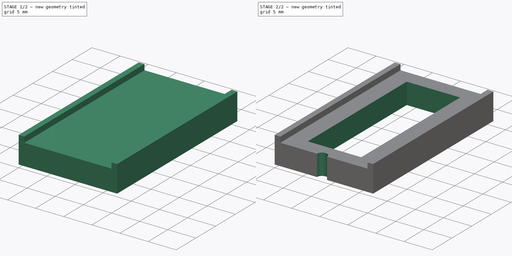
[diagram: build sequence overview — one tinted view per stage of 2, left to right]
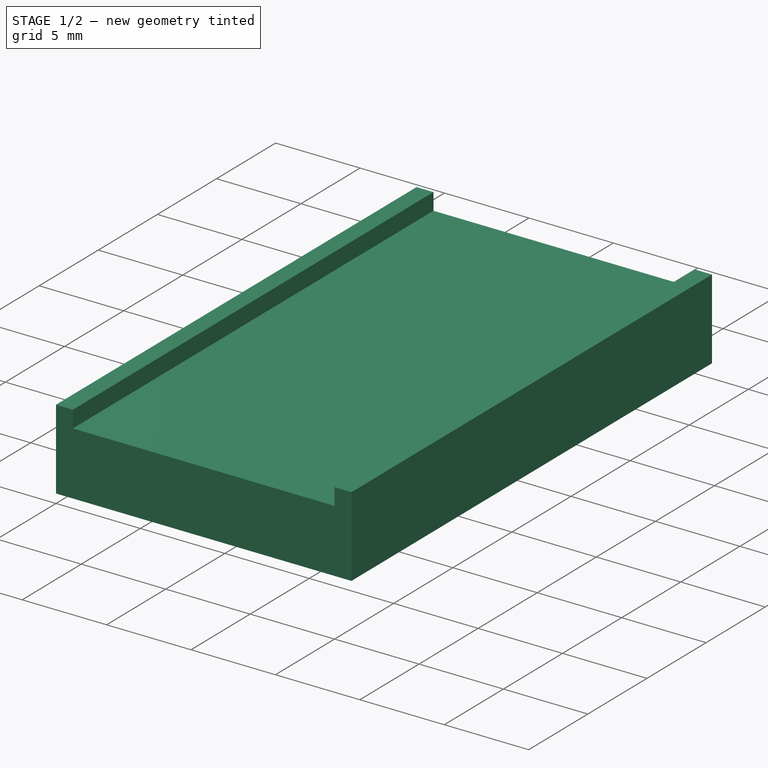
[diagram: stage 1 of 2 — iso view after this stage's code; geometry added in this stage tinted green]
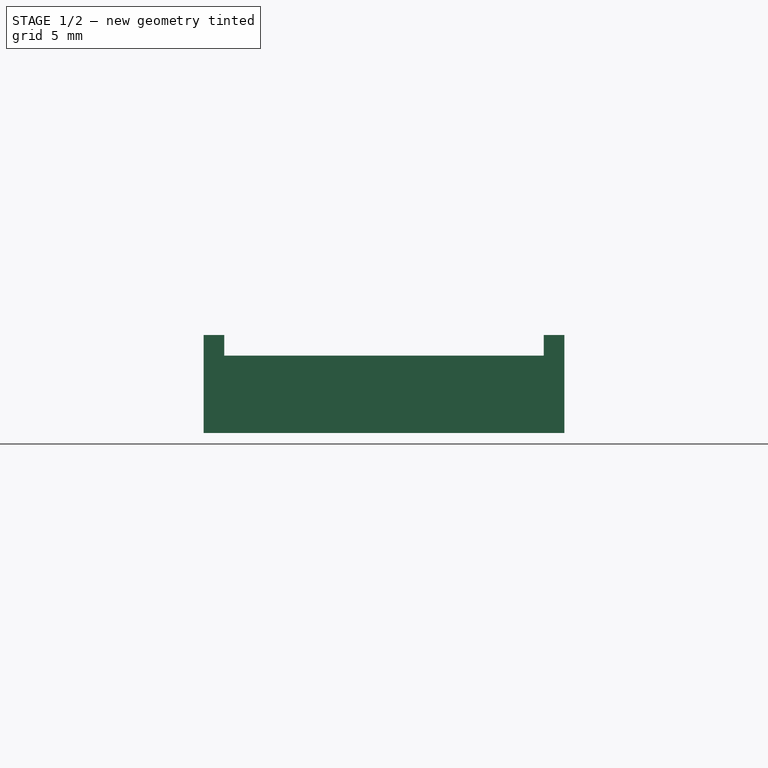
[diagram: stage 1 of 2 — front view after this stage's code; geometry added in this stage tinted green]
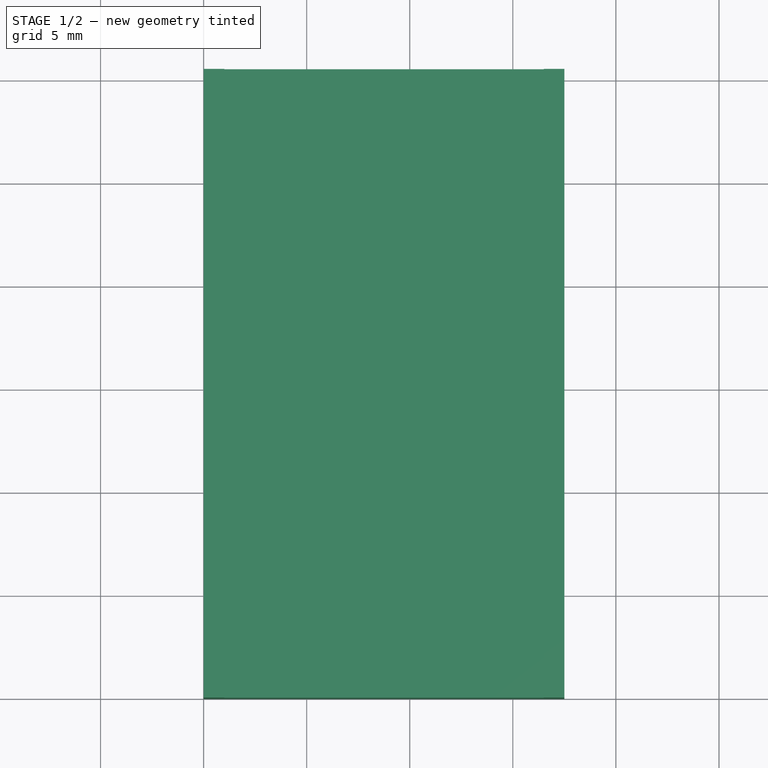
[diagram: stage 1 of 2 — top view after this stage's code; geometry added in this stage tinted green]
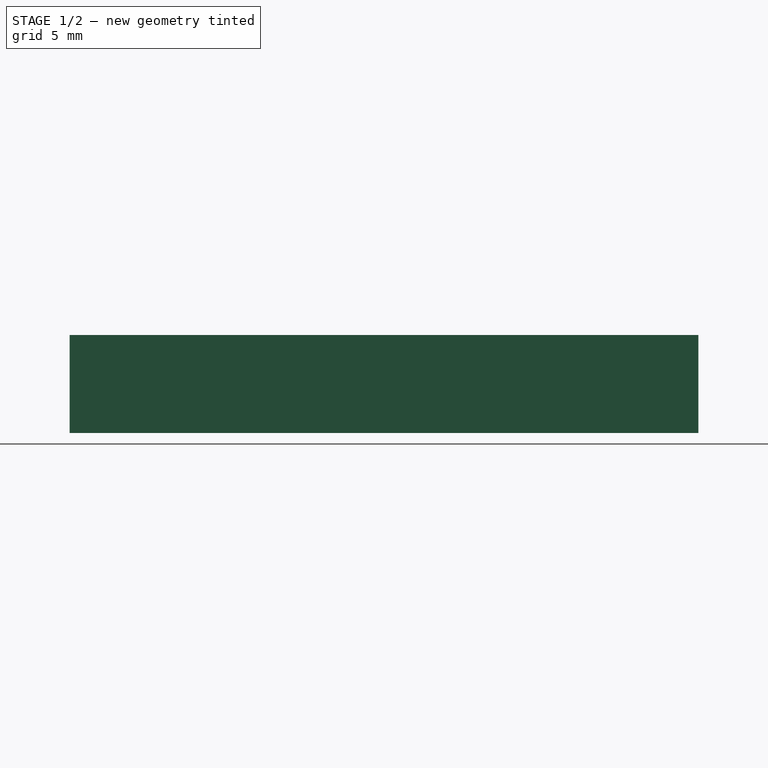
[diagram: stage 1 of 2 — right view after this stage's code; geometry added in this stage tinted green]
FCSTD DOCUMENT  (FreeCAD 0.16R6612 (Git))
Label: socket
License: All rights reserved
LicenseURL: http://en.wikipedia.org/wiki/All_rights_reserved
objects: Sketcher::SketchObject×4, PartDesign::Pocket×3, PartDesign::Pad×1, Part::Feature×1
note: 13 computed .brp shape members not serialized (recipe doc carries the construction recipe); baked Part::Feature solids carry a one-line shape summary decoded from their .brp

FEATURE [Sketcher::SketchObject] Sketch
  sketch-geometry (4):
    g0: LineSegment StartX=0 StartY=0 StartZ=0 EndX=17.5 EndY=0 EndZ=0
    g1: LineSegment StartX=17.5 StartY=0 StartZ=0 EndX=17.5 EndY=30.5 EndZ=0
    g2: LineSegment StartX=17.5 StartY=30.5 StartZ=0 EndX=0 EndY=30.5 EndZ=0
    g3: LineSegment StartX=0 StartY=30.5 StartZ=0 EndX=0 EndY=0 EndZ=0
  constraints (11):
    c: Coincident(g0,g1)
    c: Coincident(g1,g2)
    c: Coincident(g2,g3)
    c: Coincident(g3,g0)
    c: Horizontal(g0)
    c: Horizontal(g2)
    c: Vertical(g1)
    c: Vertical(g3)
    c: Coincident(g0,g-1)
    c: DistanceX(g2,g2) = 17.5
    c: DistanceY(g1,g1) = 30.5
FEATURE [PartDesign::Pad] Pad
  Length = 4.75
  Length2 = 100
  Sketch = -> Sketch
  Type = 0
FEATURE [Sketcher::SketchObject] Sketch001
  ExternalGeometry = -> [Pad]
  Placement = pos=(0,0,4.75) rot=(0,0,1;0rad)
  Support = -> Pad [Face6]
  sketch-geometry (4):
    g0: LineSegment StartX=1 StartY=30.5 StartZ=0 EndX=16.5 EndY=30.5 EndZ=0
    g1: LineSegment StartX=16.5 StartY=30.5 StartZ=0 EndX=16.5 EndY=0 EndZ=0
    g2: LineSegment StartX=16.5 StartY=0 StartZ=0 EndX=1 EndY=0 EndZ=0
    g3: LineSegment StartX=1 StartY=0 StartZ=0 EndX=1 EndY=30.5 EndZ=0
  constraints (12):
    c: Coincident(g0,g1)
    c: Coincident(g1,g2)
    c: Coincident(g2,g3)
    c: Coincident(g3,g0)
    c: Horizontal(g0)
    c: Horizontal(g2)
    c: Vertical(g1)
    c: Vertical(g3)
    c: PointOnObject(g0,g-4)
    c: PointOnObject(g1,g-1)
    c: DistanceX(g-4,g0) = 1
    c: DistanceX(g0,g-4) = 1
FEATURE [PartDesign::Pocket] Pocket
  Length = 1
  Sketch = -> Sketch001
  Type = 0
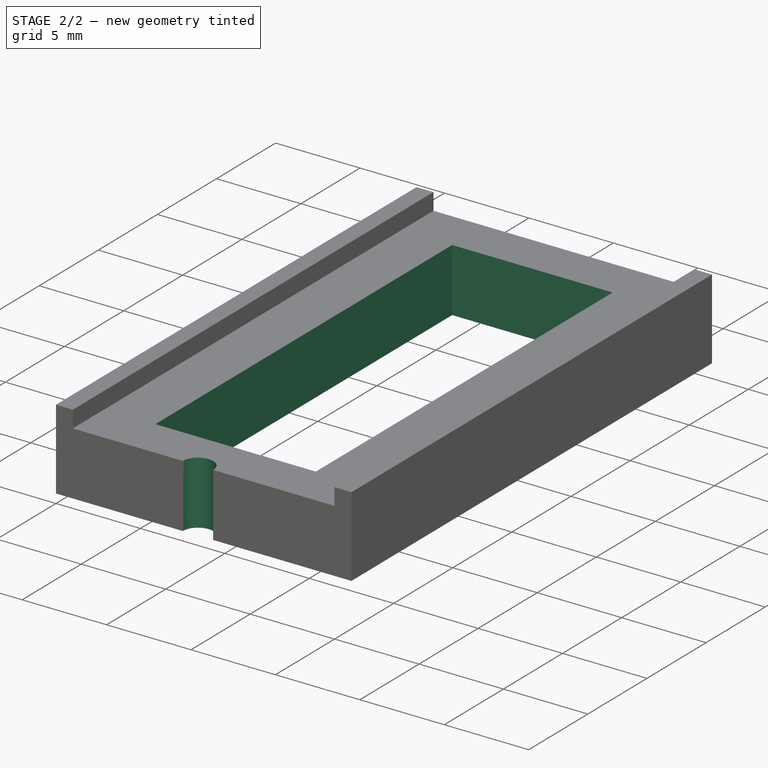
[diagram: stage 2 of 2 — iso view after this stage's code; geometry added in this stage tinted green]
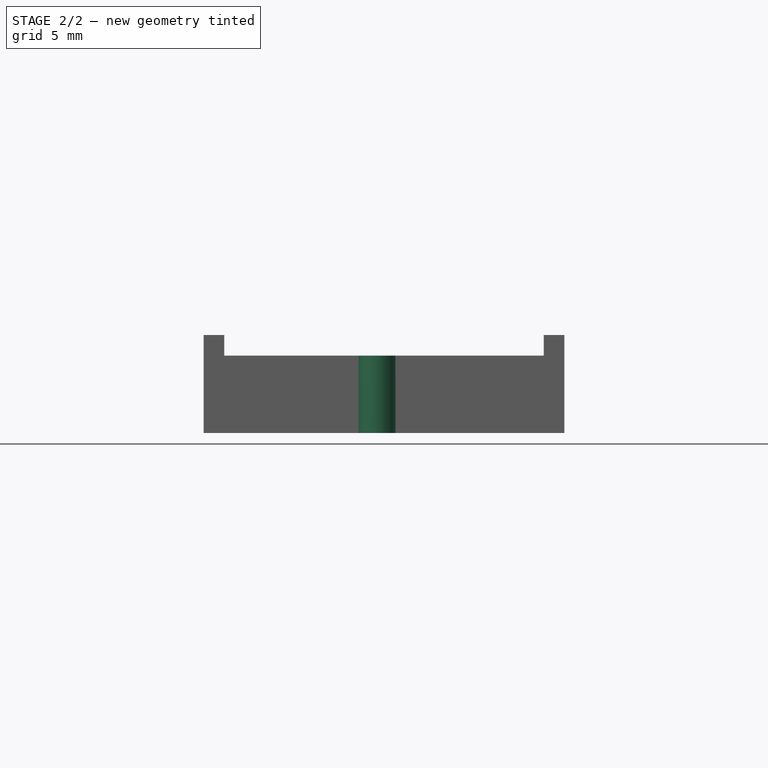
[diagram: stage 2 of 2 — front view after this stage's code; geometry added in this stage tinted green]
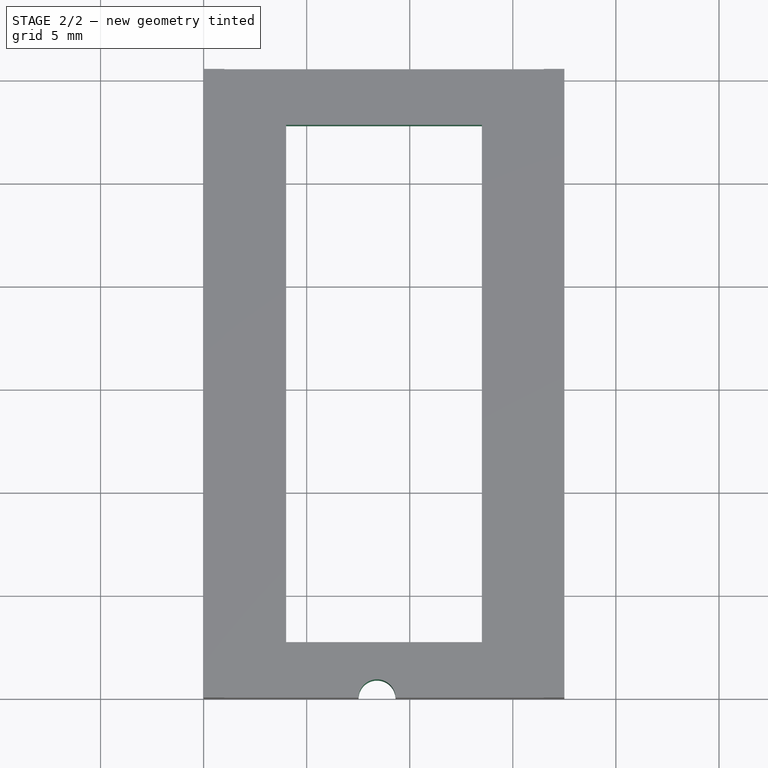
[diagram: stage 2 of 2 — top view after this stage's code; geometry added in this stage tinted green]
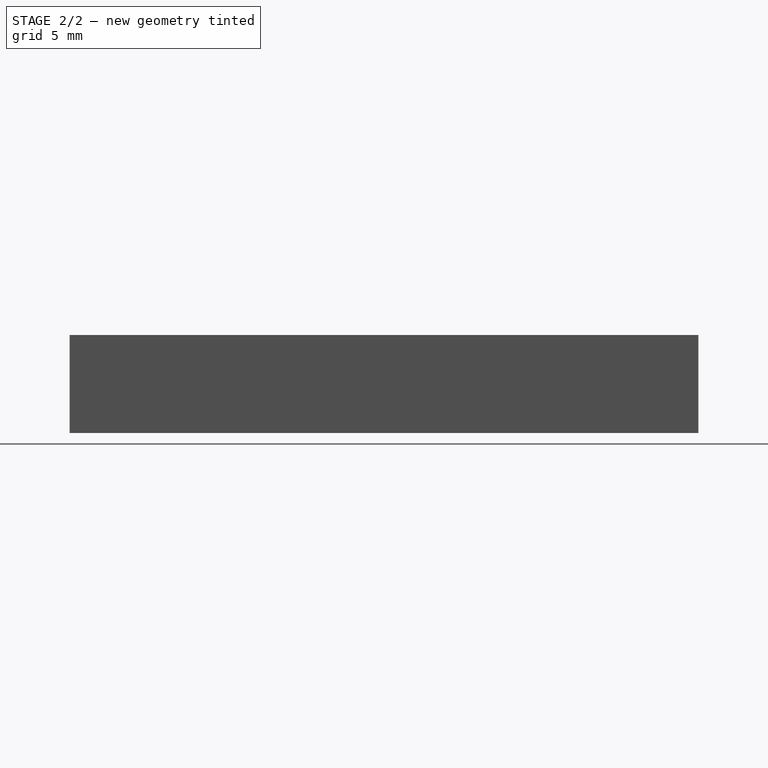
[diagram: stage 2 of 2 — right view after this stage's code; geometry added in this stage tinted green]
FEATURE [Sketcher::SketchObject] Sketch002
  ExternalGeometry = -> [Pocket]
  Placement = pos=(0,0,3.75) rot=(0,0,1;0rad)
  Support = -> Pocket [Face6]
  sketch-geometry (4):
    g0: LineSegment StartX=4 StartY=27.8 StartZ=0 EndX=13.5 EndY=27.8 EndZ=0
    g1: LineSegment StartX=13.5 StartY=27.8 StartZ=0 EndX=13.5 EndY=2.7 EndZ=0
    g2: LineSegment StartX=13.5 StartY=2.7 StartZ=0 EndX=4 EndY=2.7 EndZ=0
    g3: LineSegment StartX=4 StartY=2.7 StartZ=0 EndX=4 EndY=27.8 EndZ=0
  constraints (12):
    c: Coincident(g0,g1)
    c: Coincident(g1,g2)
    c: Coincident(g2,g3)
    c: Coincident(g3,g0)
    c: Horizontal(g0)
    c: Horizontal(g2)
    c: Vertical(g1)
    c: Vertical(g3)
    c: DistanceY(g-1,g2) = 2.7
    c: DistanceX(g-1,g2) = 4
    c: DistanceX(g1,g-3) = 4
    c: DistanceY(g0,g-3) = 2.7
FEATURE [PartDesign::Pocket] Pocket001
  Length = 5
  Sketch = -> Sketch002
  Type = 1
FEATURE [Sketcher::SketchObject] Sketch003
  Placement = pos=(0,0,3.75) rot=(0,0,1;0rad)
  Support = -> Pocket001 [Face6]
  sketch-geometry (2):
    g0: ArcOfCircle CenterX=8.4119 CenterY=0 CenterZ=0 NormalX=0 NormalY=0 NormalZ=1 Radius=0.896569 StartAngle=0 EndAngle=3.14159
    g1: LineSegment StartX=7.51533 StartY=0 StartZ=0 EndX=9.30847 EndY=0 EndZ=0
  constraints (5):
    c: PointOnObject(g0,g-1)
    c: PointOnObject(g0,g-1)
    c: PointOnObject(g0,g-1)
    c: Coincident(g1,g0)
    c: Coincident(g1,g0)
FEATURE [PartDesign::Pocket] Pocket002
  Length = 5
  Sketch = -> Sketch003
  Type = 1
FEATURE [Part::Feature] Pocket002001  label="Pocket003"
  shape: bbox 17.5 x 30.5 x 4.75 mm, 16 faces (baked)
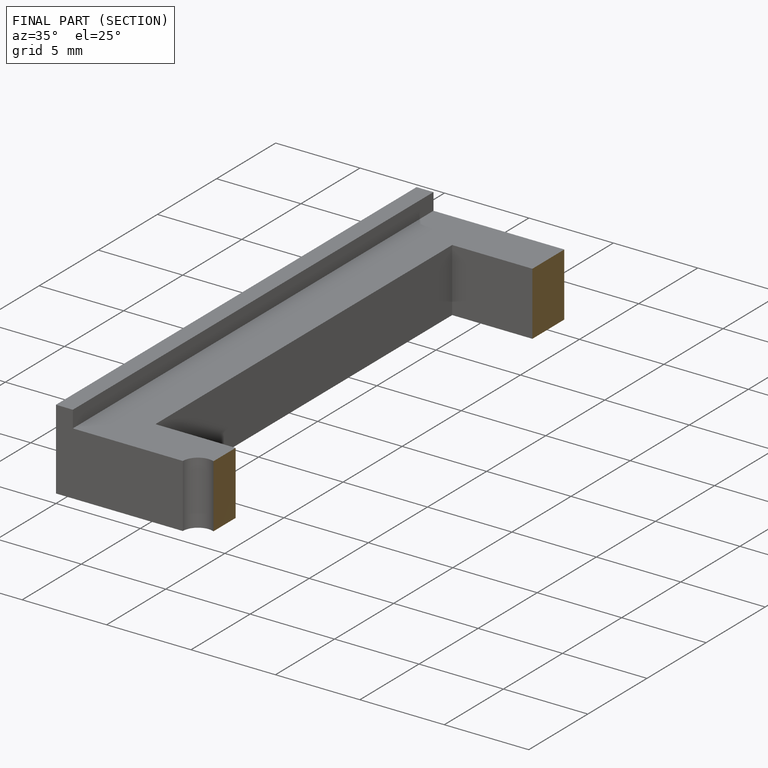
[diagram: finished part — half-section view (interior)]
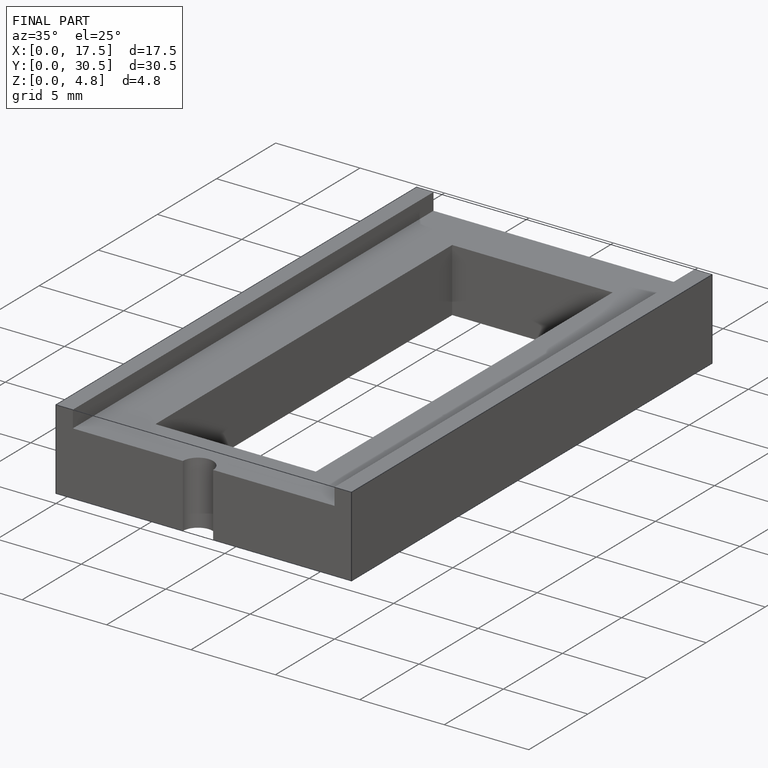
[diagram: finished part — iso view with bounding-box wireframe]
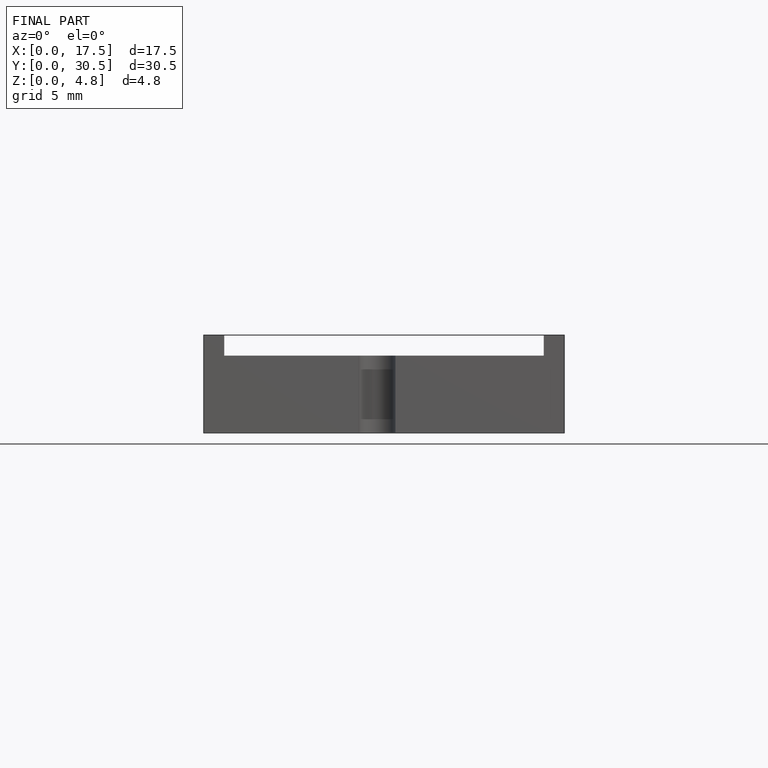
[diagram: finished part — front view with bounding-box wireframe]
